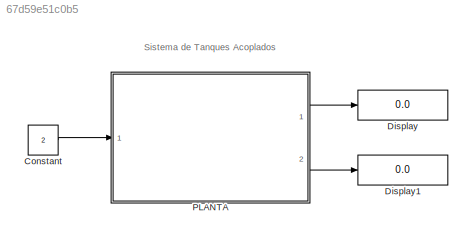
MODEL slx_67d59e51c0b5
KIND model
CONFIG AbsTol = auto
CONFIG FixedStep = 0.002
CONFIG MaxStep = auto
CONFIG MinStep = auto
CONFIG PostLoadFcn = qc_set_target_type(getConfigSet(bdroot, 'QUARC Default Target Configuration'));
CONFIG RelTol = 1e-3
CONFIG SampleTimeConstraint = Unconstrained
CONFIG Solver = ode1
CONFIG SolverMode = Auto
CONFIG SolverName = ode1
CONFIG StartTime = 0.0
CONFIG StopTime = inf
BLOCK [Constant] Constant
  Value = 2
BLOCK [Display] Display
  Decimation = 1
  Ports = [1]
BLOCK [Display] Display1
  Decimation = 1
  Ports = [1]
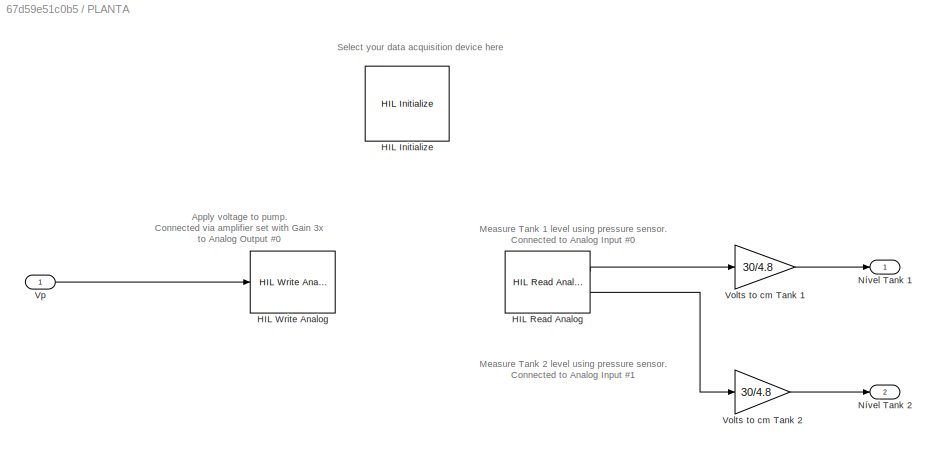
BLOCK [SubSystem] PLANTA
  Ports = [1, 2]
  RequestExecContextInheritance = off
  Variant = off
BLOCK [Reference] PLANTA/HIL Initialize  REF=quarc_library/Data Acquisition/Generic/Configuration/HIL Initialize
  AttributesFormatString = %<object_name> (%<board_type>-%<board_number>)
  Ports = []
  SourceBlock = quarc_library/Data Acquisition/Generic/Configuration/HIL Initialize
  SourceType = HIL Initialize
  UserDataPersistent = on
BLOCK [Reference] PLANTA/HIL Read Analog  REF=quarc_library/Data Acquisition/Generic/Immediate I//O/HIL Read Analog
  AttributesFormatString = (%<object_name>)
  Ports = [0, 2]
  SourceBlock = quarc_library/Data Acquisition/Generic/Immediate I//O/HIL Read Analog
  SourceType = HIL Read Analog
  UserDataPersistent = on
BLOCK [Reference] PLANTA/HIL Write Analog  REF=quarc_library/Data Acquisition/Generic/Immediate I//O/HIL Write Analog
  AttributesFormatString = (%<object_name>)
  Ports = [1]
  SourceBlock = quarc_library/Data Acquisition/Generic/Immediate I//O/HIL Write Analog
  SourceType = HIL Write Analog
  UserDataPersistent = on
BLOCK [Outport] PLANTA/Nível Tank 1
  IconDisplay = Port number
BLOCK [Outport] PLANTA/Nível Tank 2
  IconDisplay = Port number
  Port = 2
BLOCK [Gain] PLANTA/Volts to cm Tank 1 
  Gain = 30/4.8
  OutDataTypeStr = Inherit: Inherit via internal rule
  ParamDataTypeStr = Inherit: Inherit via internal rule
  SaturateOnIntegerOverflow = off
BLOCK [Gain] PLANTA/Volts to cm Tank 2
  Gain = 30/4.8
  OutDataTypeStr = Inherit: Inherit via internal rule
  ParamDataTypeStr = Inherit: Inherit via internal rule
  SaturateOnIntegerOverflow = off
BLOCK [Inport] PLANTA/Vp
  IconDisplay = Port number
ANNOTATION (root): Sistema de Tanques Acoplados
ANNOTATION PLANTA: Apply voltage to pump. Connected via amplifier set with Gain 3x to Analog Output #0
ANNOTATION PLANTA: Measure Tank 1 level using pressure sensor. Connected to Analog Input #0
ANNOTATION PLANTA: Measure Tank 2 level using pressure sensor. Connected to Analog Input #1
ANNOTATION PLANTA: Select your data acquisition device here
LINE Constant:1 -> PLANTA:1
LINE PLANTA/HIL Read Analog:1 -> PLANTA/Volts to cm Tank 1 :1
LINE PLANTA/HIL Read Analog:2 -> PLANTA/Volts to cm Tank 2:1
LINE PLANTA/Volts to cm Tank 1 :1 -> PLANTA/Nível Tank 1:1
LINE PLANTA/Volts to cm Tank 2:1 -> PLANTA/Nível Tank 2:1
LINE PLANTA/Vp:1 -> PLANTA/HIL Write Analog:1
LINE PLANTA:1 -> Display:1
LINE PLANTA:2 -> Display1:1
